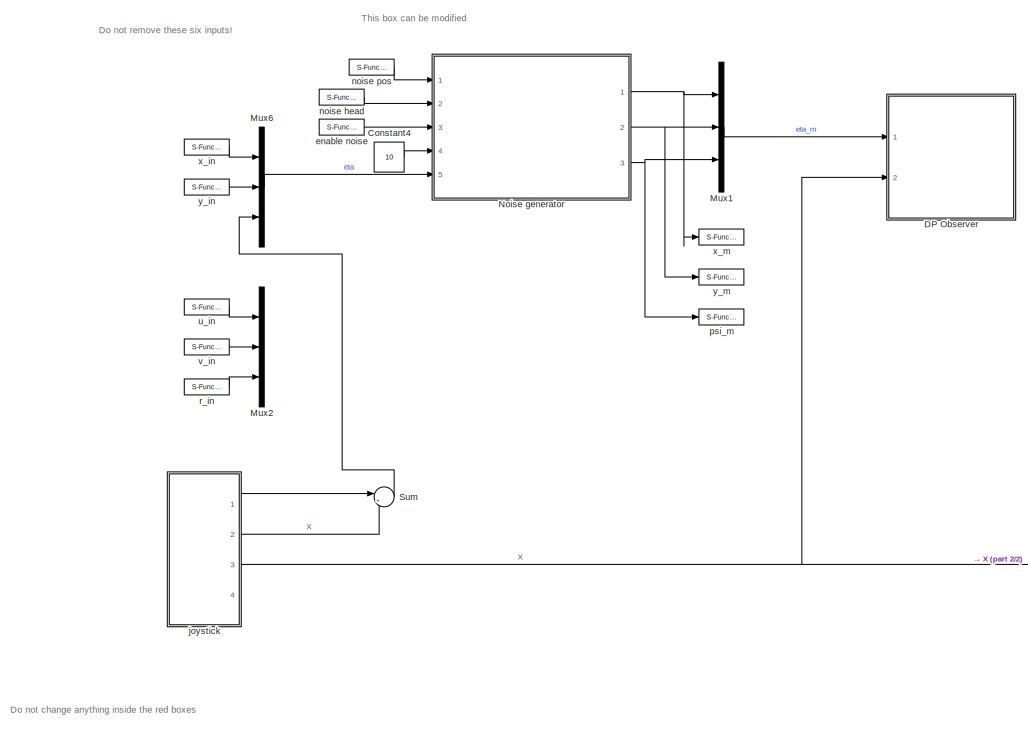
[diagram: root canvas - part 1/2, left side, full height]
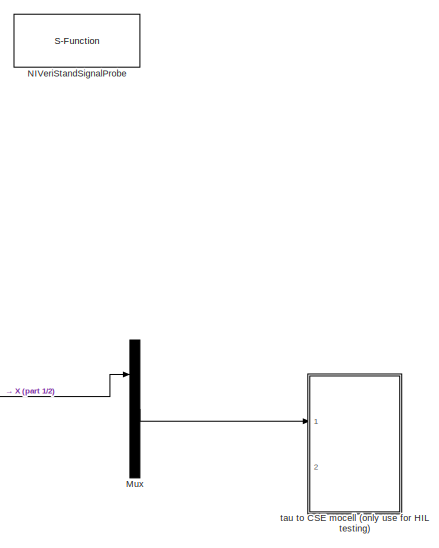
[diagram: root canvas - part 2/2, middle right region]
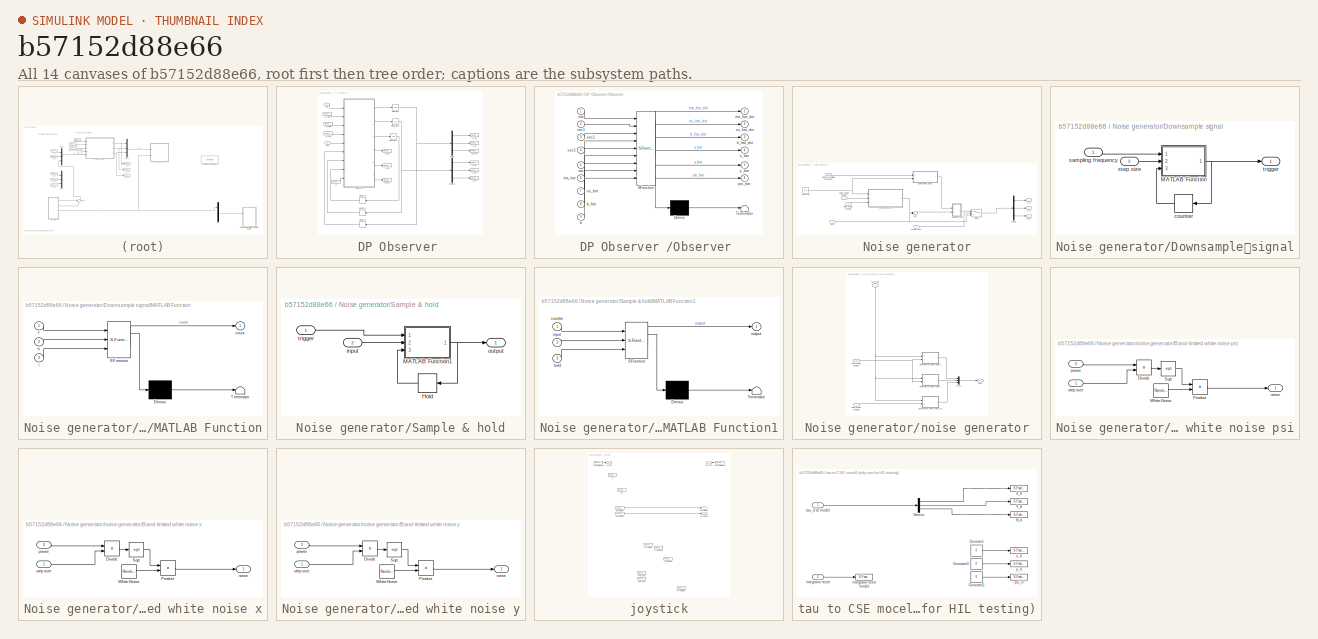
[diagram: thumbnail index - all 14 canvases of the model, root first then tree order]
MODEL slx_b57152d88e66
KIND model
CONFIG AbsTol = auto
CONFIG FixedStep = 0.01
CONFIG MaxStep = auto
CONFIG MinStep = auto
CONFIG RelTol = 1e-3
CONFIG SampleTimeConstraint = Unconstrained
CONFIG Solver = ode4
CONFIG SolverMode = Auto
CONFIG SolverName = ode4
CONFIG StartTime = 0.0
CONFIG StopTime = inf
BLOCK [Constant] Constant4
  Value = 10
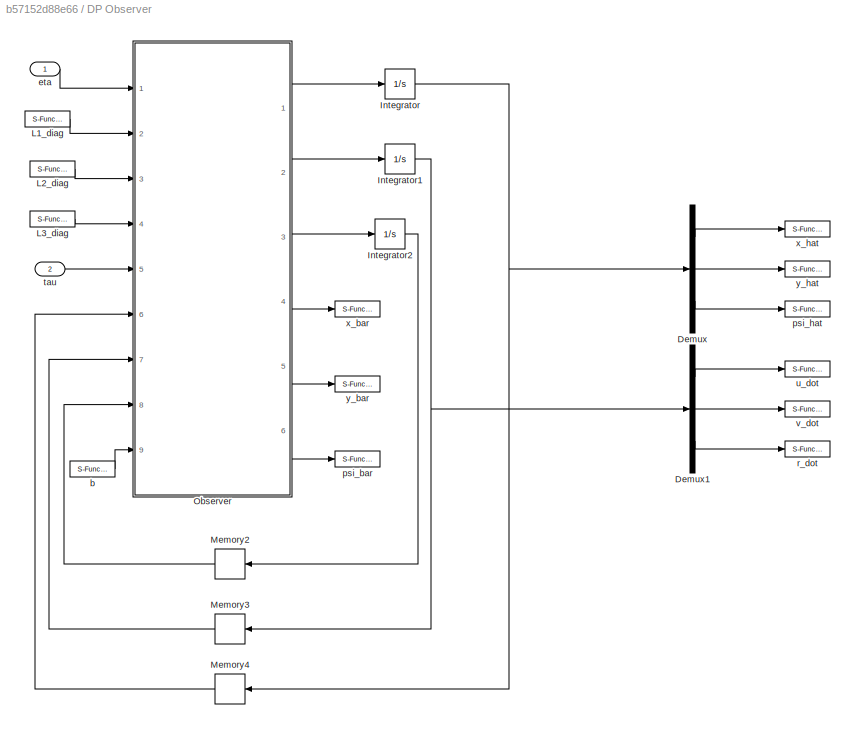
BLOCK [SubSystem] DP Observer 
  Ports = [2]
  RequestExecContextInheritance = off
BLOCK [Demux] DP Observer /Demux
  DisplayOption = bar
  Outputs = 3
  Ports = [1, 3]
BLOCK [Demux] DP Observer /Demux1
  DisplayOption = bar
  Outputs = 3
  Ports = [1, 3]
BLOCK [Integrator] DP Observer /Integrator
  Ports = [1, 1]
BLOCK [Integrator] DP Observer /Integrator1
  Ports = [1, 1]
BLOCK [Integrator] DP Observer /Integrator2
  Ports = [1, 1]
BLOCK [S-Function] DP Observer /L1_diag
  CopyFcn = NIVeriStand_MDL_functions('', 'IO_copy');
  DeleteFcn = NIVeriStand_MDL_functions('', 'IO_delete');
  FunctionName = NIVeriStandIO
  MoveFcn = set_param(gcb, 'Mask', 'on');
  Parameters = width dtype portnum stime stype btype
  Ports = [0, 1]
  Priority = 1
BLOCK [S-Function] DP Observer /L2_diag 
  CopyFcn = NIVeriStand_MDL_functions('', 'IO_copy');
  DeleteFcn = NIVeriStand_MDL_functions('', 'IO_delete');
  FunctionName = NIVeriStandIO
  MoveFcn = set_param(gcb, 'Mask', 'on');
  Parameters = width dtype portnum stime stype btype
  Ports = [0, 1]
  Priority = 2
BLOCK [S-Function] DP Observer /L3_diag
  CopyFcn = NIVeriStand_MDL_functions('', 'IO_copy');
  DeleteFcn = NIVeriStand_MDL_functions('', 'IO_delete');
  FunctionName = NIVeriStandIO
  MoveFcn = set_param(gcb, 'Mask', 'on');
  Parameters = width dtype portnum stime stype btype
  Ports = [0, 1]
  Priority = 3
BLOCK [Memory] DP Observer /Memory2
  X0 = [0;0;0]
BLOCK [Memory] DP Observer /Memory3
  X0 = [0;0;0]
BLOCK [Memory] DP Observer /Memory4
  X0 = [0;0;0]
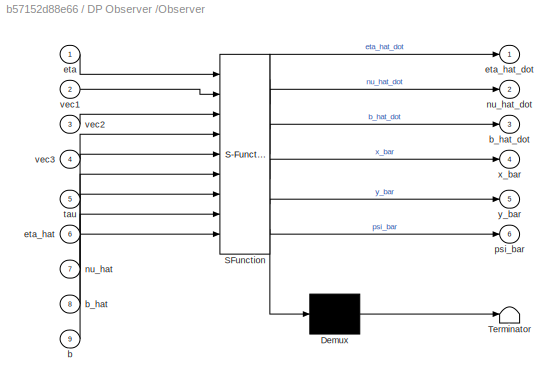
BLOCK [SubSystem] DP Observer /Observer 
  ErrorFcn = Stateflow.Translate.translate
  PermitHierarchicalResolution = ExplicitOnly
  Ports = [9, 6]
  RequestExecContextInheritance = off
  SFBlockType = MATLAB Function
  TreatAsAtomicUnit = on
BLOCK [Demux] DP Observer /Observer / Demux 
  Outputs = 1
  Ports = [1, 1]
BLOCK [S-Function] DP Observer /Observer / SFunction 
  EnableBusSupport = on
  FunctionName = sf_sfun
  PortCounts = [9 7]
  Ports = [9, 7]
  Tag = Stateflow S-Function ctrl_student_HIL_caseC 7
BLOCK [Terminator] DP Observer /Observer / Terminator 
BLOCK [Inport] DP Observer /Observer /b
  IconDisplay = Port number
  Port = 9
BLOCK [Inport] DP Observer /Observer /b_hat
  IconDisplay = Port number
  Port = 8
BLOCK [Outport] DP Observer /Observer /b_hat_dot
  IconDisplay = Port number
  Port = 3
BLOCK [Inport] DP Observer /Observer /eta
  IconDisplay = Port number
BLOCK [Inport] DP Observer /Observer /eta_hat
  IconDisplay = Port number
  Port = 6
BLOCK [Outport] DP Observer /Observer /eta_hat_dot
  IconDisplay = Port number
BLOCK [Inport] DP Observer /Observer /nu_hat
  IconDisplay = Port number
  Port = 7
BLOCK [Outport] DP Observer /Observer /nu_hat_dot
  IconDisplay = Port number
  Port = 2
BLOCK [Outport] DP Observer /Observer /psi_bar
  IconDisplay = Port number
  Port = 6
BLOCK [Inport] DP Observer /Observer /tau
  IconDisplay = Port number
  Port = 5
BLOCK [Inport] DP Observer /Observer /vec1
  IconDisplay = Port number
  Port = 2
BLOCK [Inport] DP Observer /Observer /vec2
  IconDisplay = Port number
  Port = 3
BLOCK [Inport] DP Observer /Observer /vec3
  IconDisplay = Port number
  Port = 4
BLOCK [Outport] DP Observer /Observer /x_bar
  IconDisplay = Port number
  Port = 4
BLOCK [Outport] DP Observer /Observer /y_bar
  IconDisplay = Port number
  Port = 5
BLOCK [S-Function] DP Observer /b
  CopyFcn = NIVeriStand_MDL_functions('', 'IO_copy');
  DeleteFcn = NIVeriStand_MDL_functions('', 'IO_delete');
  FunctionName = NIVeriStandIO
  MoveFcn = set_param(gcb, 'Mask', 'on');
  Parameters = width dtype portnum stime stype btype
  Ports = [0, 1]
  Priority = 4
BLOCK [Inport] DP Observer /eta 
  IconDisplay = Port number
BLOCK [S-Function] DP Observer /psi_bar
  CopyFcn = NIVeriStand_MDL_functions('', 'IO_copy');
  DeleteFcn = NIVeriStand_MDL_functions('', 'IO_delete');
  FunctionName = NIVeriStandIO
  MoveFcn = set_param(gcb, 'Mask', 'on');
  Parameters = width dtype portnum stime stype btype
  Ports = [1]
  Priority = 8
BLOCK [S-Function] DP Observer /psi_hat
  CopyFcn = NIVeriStand_MDL_functions('', 'IO_copy');
  DeleteFcn = NIVeriStand_MDL_functions('', 'IO_delete');
  FunctionName = NIVeriStandIO
  MoveFcn = set_param(gcb, 'Mask', 'on');
  Parameters = width dtype portnum stime stype btype
  Ports = [1]
  Priority = 2
BLOCK [S-Function] DP Observer /r_dot
  CopyFcn = NIVeriStand_MDL_functions('', 'IO_copy');
  DeleteFcn = NIVeriStand_MDL_functions('', 'IO_delete');
  FunctionName = NIVeriStandIO
  MoveFcn = set_param(gcb, 'Mask', 'on');
  Parameters = width dtype portnum stime stype btype
  Ports = [1]
  Priority = 4
BLOCK [Inport] DP Observer /tau 
  IconDisplay = Port number
  Port = 2
BLOCK [S-Function] DP Observer /u_dot
  CopyFcn = NIVeriStand_MDL_functions('', 'IO_copy');
  DeleteFcn = NIVeriStand_MDL_functions('', 'IO_delete');
  FunctionName = NIVeriStandIO
  MoveFcn = set_param(gcb, 'Mask', 'on');
  Parameters = width dtype portnum stime stype btype
  Ports = [1]
  Priority = 5
BLOCK [S-Function] DP Observer /v_dot
  CopyFcn = NIVeriStand_MDL_functions('', 'IO_copy');
  DeleteFcn = NIVeriStand_MDL_functions('', 'IO_delete');
  FunctionName = NIVeriStandIO
  MoveFcn = set_param(gcb, 'Mask', 'on');
  Parameters = width dtype portnum stime stype btype
  Ports = [1]
  Priority = 6
BLOCK [S-Function] DP Observer /x_bar
  CopyFcn = NIVeriStand_MDL_functions('', 'IO_copy');
  DeleteFcn = NIVeriStand_MDL_functions('', 'IO_delete');
  FunctionName = NIVeriStandIO
  MoveFcn = set_param(gcb, 'Mask', 'on');
  Parameters = width dtype portnum stime stype btype
  Ports = [1]
  Priority = 9
BLOCK [S-Function] DP Observer /x_hat
  CopyFcn = NIVeriStand_MDL_functions('', 'IO_copy');
  DeleteFcn = NIVeriStand_MDL_functions('', 'IO_delete');
  FunctionName = NIVeriStandIO
  MoveFcn = set_param(gcb, 'Mask', 'on');
  Parameters = width dtype portnum stime stype btype
  Ports = [1]
  Priority = 1
BLOCK [S-Function] DP Observer /y_bar
  CopyFcn = NIVeriStand_MDL_functions('', 'IO_copy');
  DeleteFcn = NIVeriStand_MDL_functions('', 'IO_delete');
  FunctionName = NIVeriStandIO
  MoveFcn = set_param(gcb, 'Mask', 'on');
  Parameters = width dtype portnum stime stype btype
  Ports = [1]
  Priority = 7
BLOCK [S-Function] DP Observer /y_hat
  CopyFcn = NIVeriStand_MDL_functions('', 'IO_copy');
  DeleteFcn = NIVeriStand_MDL_functions('', 'IO_delete');
  FunctionName = NIVeriStandIO
  MoveFcn = set_param(gcb, 'Mask', 'on');
  Parameters = width dtype portnum stime stype btype
  Ports = [1]
  Priority = 3
BLOCK [Mux] Mux
  DisplayOption = bar
  Inputs = 3
  Ports = [3, 1]
BLOCK [Mux] Mux1
  DisplayOption = bar
  Inputs = 3
  Ports = [3, 1]
BLOCK [Mux] Mux2
  DisplayOption = bar
  Inputs = 3
  Ports = [3, 1]
BLOCK [Mux] Mux6
  DisplayOption = bar
  Inputs = 3
  Ports = [3, 1]
BLOCK [S-Function] NIVeriStandSignalProbe
  FunctionName = NIVeriStandSignalProbe
  Parameters = 1
  Ports = []
BLOCK [SubSystem] Noise generator
  Ports = [5, 3]
  RequestExecContextInheritance = off
BLOCK [Demux] Noise generator/Demux
  DisplayOption = bar
  Outputs = 3
  Ports = [1, 3]
BLOCK [Inport] Noise generator/Desiired Sampling Frequency
  IconDisplay = Port number
  Port = 4
BLOCK [SubSystem] Noise generator/Downsample	signal
  Ports = [2, 1]
  RequestExecContextInheritance = off
BLOCK [SubSystem] Noise generator/Downsample	signal/MATLAB Function
  ErrorFcn = Stateflow.Translate.translate
  PermitHierarchicalResolution = ExplicitOnly
  Ports = [3, 1]
  RequestExecContextInheritance = off
  SFBlockType = MATLAB Function
  TreatAsAtomicUnit = on
BLOCK [Demux] Noise generator/Downsample	signal/MATLAB Function/ Demux 
  Outputs = 1
  Ports = [1, 1]
BLOCK [S-Function] Noise generator/Downsample	signal/MATLAB Function/ SFunction 
  EnableBusSupport = on
  FunctionName = sf_sfun
  PortCounts = [3 2]
  Ports = [3, 2]
  Tag = Stateflow S-Function ctrl_student_HIL_caseC 3
BLOCK [Terminator] Noise generator/Downsample	signal/MATLAB Function/ Terminator 
BLOCK [Outport] Noise generator/Downsample	signal/MATLAB Function/count
  IconDisplay = Port number
BLOCK [Inport] Noise generator/Downsample	signal/MATLAB Function/f
  IconDisplay = Port number
BLOCK [Inport] Noise generator/Downsample	signal/MATLAB Function/h
  IconDisplay = Port number
  Port = 2
BLOCK [Inport] Noise generator/Downsample	signal/MATLAB Function/i
  IconDisplay = Port number
  Port = 3
BLOCK [Memory] Noise generator/Downsample	signal/counter
BLOCK [Inport] Noise generator/Downsample	signal/sampling frequency
  IconDisplay = Port number
BLOCK [Inport] Noise generator/Downsample	signal/step size
  IconDisplay = Port number
  Port = 2
BLOCK [Outport] Noise generator/Downsample	signal/trigger
  IconDisplay = Port number
BLOCK [Inport] Noise generator/Enable noise
  IconDisplay = Port number
  Port = 3
BLOCK [Inport] Noise generator/Noise power heading
  IconDisplay = Port number
  Port = 2
BLOCK [Inport] Noise generator/Noise power position
  IconDisplay = Port number
BLOCK [SubSystem] Noise generator/Sample & hold
  Ports = [2, 1]
  RequestExecContextInheritance = off
BLOCK [Memory] Noise generator/Sample & hold/Hold
BLOCK [SubSystem] Noise generator/Sample & hold/MATLAB Function1
  ErrorFcn = Stateflow.Translate.translate
  PermitHierarchicalResolution = ExplicitOnly
  Ports = [3, 1]
  RequestExecContextInheritance = off
  SFBlockType = MATLAB Function
  TreatAsAtomicUnit = on
BLOCK [Demux] Noise generator/Sample & hold/MATLAB Function1/ Demux 
  Outputs = 1
  Ports = [1, 1]
BLOCK [S-Function] Noise generator/Sample & hold/MATLAB Function1/ SFunction 
  EnableBusSupport = on
  FunctionName = sf_sfun
  PortCounts = [3 2]
  Ports = [3, 2]
  Tag = Stateflow S-Function ctrl_student_HIL_caseC 5
BLOCK [Terminator] Noise generator/Sample & hold/MATLAB Function1/ Terminator 
BLOCK [Inport] Noise generator/Sample & hold/MATLAB Function1/counter
  IconDisplay = Port number
BLOCK [Inport] Noise generator/Sample & hold/MATLAB Function1/hold
  IconDisplay = Port number
  Port = 3
BLOCK [Inport] Noise generator/Sample & hold/MATLAB Function1/input
  IconDisplay = Port number
  Port = 2
BLOCK [Outport] Noise generator/Sample & hold/MATLAB Function1/output
  IconDisplay = Port number
BLOCK [Inport] Noise generator/Sample & hold/input
  IconDisplay = Port number
  Port = 2
BLOCK [Outport] Noise generator/Sample & hold/output
  IconDisplay = Port number
BLOCK [Inport] Noise generator/Sample & hold/trigger
  IconDisplay = Port number
BLOCK [Constant] Noise generator/Step size
  Value = 0.01
BLOCK [Sum] Noise generator/Sum
  InputSameDT = off
  OutDataTypeStr = Inherit: Inherit via internal rule
  Ports = [2, 1]
  SaturateOnIntegerOverflow = off
BLOCK [Switch] Noise generator/Switch
  Criteria = u2 ~= 0
  InputSameDT = off
  SaturateOnIntegerOverflow = off
BLOCK [Inport] Noise generator/eta
  IconDisplay = Port number
  Port = 5
BLOCK [SubSystem] Noise generator/noise generator
  Ports = [3, 1]
  RequestExecContextInheritance = off
BLOCK [SubSystem] Noise generator/noise generator/Band-limited white noise psi
  Ports = [2, 1]
  RequestExecContextInheritance = off
BLOCK [Product] Noise generator/noise generator/Band-limited white noise psi/Divide
  InputSameDT = off
  Inputs = */
  OutDataTypeStr = Inherit: Inherit via internal rule
  Ports = [2, 1]
  RndMeth = Floor
  SaturateOnIntegerOverflow = off
BLOCK [Product] Noise generator/noise generator/Band-limited white noise psi/Product
  InputSameDT = off
  OutDataTypeStr = Inherit: Inherit via internal rule
  Ports = [2, 1]
  RndMeth = Floor
  SaturateOnIntegerOverflow = off
BLOCK [Sqrt] Noise generator/noise generator/Band-limited white noise psi/Sqrt
BLOCK [RandomNumber] Noise generator/noise generator/Band-limited white noise psi/White Noise
  DisableCoverage = on
  Seed = 9025
BLOCK [Outport] Noise generator/noise generator/Band-limited white noise psi/noise
  IconDisplay = Port number
BLOCK [Inport] Noise generator/noise generator/Band-limited white noise psi/power
  IconDisplay = Port number
  Port = 2
BLOCK [Inport] Noise generator/noise generator/Band-limited white noise psi/step size
  IconDisplay = Port number
BLOCK [SubSystem] Noise generator/noise generator/Band-limited white noise x
  Ports = [2, 1]
  RequestExecContextInheritance = off
BLOCK [Product] Noise generator/noise generator/Band-limited white noise x/Divide
  InputSameDT = off
  Inputs = */
  OutDataTypeStr = Inherit: Inherit via internal rule
  Ports = [2, 1]
  RndMeth = Floor
  SaturateOnIntegerOverflow = off
BLOCK [Product] Noise generator/noise generator/Band-limited white noise x/Product
  InputSameDT = off
  OutDataTypeStr = Inherit: Inherit via internal rule
  Ports = [2, 1]
  RndMeth = Floor
  SaturateOnIntegerOverflow = off
BLOCK [Sqrt] Noise generator/noise generator/Band-limited white noise x/Sqrt
BLOCK [RandomNumber] Noise generator/noise generator/Band-limited white noise x/White Noise
  DisableCoverage = on
  Seed = 9024
BLOCK [Outport] Noise generator/noise generator/Band-limited white noise x/noise
  IconDisplay = Port number
BLOCK [Inport] Noise generator/noise generator/Band-limited white noise x/power
  IconDisplay = Port number
  Port = 2
BLOCK [Inport] Noise generator/noise generator/Band-limited white noise x/step size
  IconDisplay = Port number
BLOCK [SubSystem] Noise generator/noise generator/Band-limited white noise y
  Ports = [2, 1]
  RequestExecContextInheritance = off
BLOCK [Product] Noise generator/noise generator/Band-limited white noise y/Divide
  InputSameDT = off
  Inputs = */
  OutDataTypeStr = Inherit: Inherit via internal rule
  Ports = [2, 1]
  RndMeth = Floor
  SaturateOnIntegerOverflow = off
BLOCK [Product] Noise generator/noise generator/Band-limited white noise y/Product
  InputSameDT = off
  OutDataTypeStr = Inherit: Inherit via internal rule
  Ports = [2, 1]
  RndMeth = Floor
  SaturateOnIntegerOverflow = off
BLOCK [Sqrt] Noise generator/noise generator/Band-limited white noise y/Sqrt
BLOCK [RandomNumber] Noise generator/noise generator/Band-limited white noise y/White Noise
  DisableCoverage = on
  Seed = 123
BLOCK [Outport] Noise generator/noise generator/Band-limited white noise y/noise
  IconDisplay = Port number
BLOCK [Inport] Noise generator/noise generator/Band-limited white noise y/power
  IconDisplay = Port number
  Port = 2
BLOCK [Inport] Noise generator/noise generator/Band-limited white noise y/step size
  IconDisplay = Port number
BLOCK [Mux] Noise generator/noise generator/Mux1
  DisplayOption = bar
  Inputs = 3
  Ports = [3, 1]
BLOCK [Outport] Noise generator/noise generator/Out1
  IconDisplay = Port number
BLOCK [Inport] Noise generator/noise generator/noise power heading
  IconDisplay = Port number
  Port = 3
BLOCK [Inport] Noise generator/noise generator/noise power position
  IconDisplay = Port number
  Port = 2
BLOCK [Inport] Noise generator/noise generator/step size
  IconDisplay = Port number
BLOCK [Outport] Noise generator/psi_m
  IconDisplay = Port number
  Port = 3
BLOCK [Outport] Noise generator/x_m
  IconDisplay = Port number
BLOCK [Outport] Noise generator/y_m
  IconDisplay = Port number
  Port = 2
BLOCK [Sum] Sum
  IconShape = round
  InputSameDT = off
  Inputs = |+-
  OutDataTypeStr = Inherit: Inherit via internal rule
  Ports = [2, 1]
  SaturateOnIntegerOverflow = off
BLOCK [S-Function] enable noise
  CopyFcn = NIVeriStand_MDL_functions('', 'IO_copy');
  DeleteFcn = NIVeriStand_MDL_functions('', 'IO_delete');
  FunctionName = NIVeriStandIO
  MoveFcn = set_param(gcb, 'Mask', 'on');
  Parameters = width dtype portnum stime stype btype
  Ports = [0, 1]
  Priority = 6
BLOCK [SubSystem] joystick
  Ports = [0, 4]
  RequestExecContextInheritance = off
BLOCK [S-Function] joystick/ArrowDown
  CopyFcn = NIVeriStand_MDL_functions('', 'IO_copy');
  DeleteFcn = NIVeriStand_MDL_functions('', 'IO_delete');
  FunctionName = NIVeriStandIO
  MoveFcn = set_param(gcb, 'Mask', 'on');
  Parameters = width dtype portnum stime stype btype
  Ports = [0, 1]
  Priority = 9
BLOCK [S-Function] joystick/ArrowLeft
  CopyFcn = NIVeriStand_MDL_functions('', 'IO_copy');
  DeleteFcn = NIVeriStand_MDL_functions('', 'IO_delete');
  FunctionName = NIVeriStandIO
  MoveFcn = set_param(gcb, 'Mask', 'on');
  Parameters = width dtype portnum stime stype btype
  Ports = [0, 1]
  Priority = 11
BLOCK [S-Function] joystick/ArrowRight
  CopyFcn = NIVeriStand_MDL_functions('', 'IO_copy');
  DeleteFcn = NIVeriStand_MDL_functions('', 'IO_delete');
  FunctionName = NIVeriStandIO
  MoveFcn = set_param(gcb, 'Mask', 'on');
  Parameters = width dtype portnum stime stype btype
  Ports = [0, 1]
  Priority = 12
BLOCK [S-Function] joystick/ArrowUp
  CopyFcn = NIVeriStand_MDL_functions('', 'IO_copy');
  DeleteFcn = NIVeriStand_MDL_functions('', 'IO_delete');
  FunctionName = NIVeriStandIO
  MoveFcn = set_param(gcb, 'Mask', 'on');
  Parameters = width dtype portnum stime stype btype
  Ports = [0, 1]
  Priority = 10
BLOCK [S-Function] joystick/L1
  CopyFcn = NIVeriStand_MDL_functions('', 'IO_copy');
  DeleteFcn = NIVeriStand_MDL_functions('', 'IO_delete');
  FunctionName = NIVeriStandIO
  MoveFcn = set_param(gcb, 'Mask', 'on');
  Parameters = width dtype portnum stime stype btype
  Ports = [0, 1]
  Priority = 7
BLOCK [Outport] joystick/L2_cont
  IconDisplay = Port number
BLOCK [S-Function] joystick/L2_continuous
  CopyFcn = NIVeriStand_MDL_functions('', 'IO_copy');
  DeleteFcn = NIVeriStand_MDL_functions('', 'IO_delete');
  FunctionName = NIVeriStandIO
  MoveFcn = set_param(gcb, 'Mask', 'on');
  Parameters = width dtype portnum stime stype btype
  Ports = [0, 1]
  Priority = 1
BLOCK [Outport] joystick/PosX Right
  IconDisplay = Port number
  Port = 3
BLOCK [S-Function] joystick/PosXLeft
  CopyFcn = NIVeriStand_MDL_functions('', 'IO_copy');
  DeleteFcn = NIVeriStand_MDL_functions('', 'IO_delete');
  FunctionName = NIVeriStandIO
  MoveFcn = set_param(gcb, 'Mask', 'on');
  Parameters = width dtype portnum stime stype btype
  Ports = [0, 1]
  Priority = 5
BLOCK [S-Function] joystick/PosXRight
  CopyFcn = NIVeriStand_MDL_functions('', 'IO_copy');
  DeleteFcn = NIVeriStand_MDL_functions('', 'IO_delete');
  FunctionName = NIVeriStandIO
  MoveFcn = set_param(gcb, 'Mask', 'on');
  Parameters = width dtype portnum stime stype btype
  Ports = [0, 1]
  Priority = 2
BLOCK [Outport] joystick/PosY Right
  IconDisplay = Port number
  Port = 4
BLOCK [S-Function] joystick/PosYLeft
  CopyFcn = NIVeriStand_MDL_functions('', 'IO_copy');
  DeleteFcn = NIVeriStand_MDL_functions('', 'IO_delete');
  FunctionName = NIVeriStandIO
  MoveFcn = set_param(gcb, 'Mask', 'on');
  Parameters = width dtype portnum stime stype btype
  Ports = [0, 1]
  Priority = 6
BLOCK [S-Function] joystick/PosYRight
  CopyFcn = NIVeriStand_MDL_functions('', 'IO_copy');
  DeleteFcn = NIVeriStand_MDL_functions('', 'IO_delete');
  FunctionName = NIVeriStandIO
  MoveFcn = set_param(gcb, 'Mask', 'on');
  Parameters = width dtype portnum stime stype btype
  Ports = [0, 1]
  Priority = 3
BLOCK [S-Function] joystick/R1
  CopyFcn = NIVeriStand_MDL_functions('', 'IO_copy');
  DeleteFcn = NIVeriStand_MDL_functions('', 'IO_delete');
  FunctionName = NIVeriStandIO
  MoveFcn = set_param(gcb, 'Mask', 'on');
  Parameters = width dtype portnum stime stype btype
  Ports = [0, 1]
  Priority = 8
BLOCK [Outport] joystick/R2_cont
  IconDisplay = Port number
  Port = 2
BLOCK [S-Function] joystick/R2_continuous
  CopyFcn = NIVeriStand_MDL_functions('', 'IO_copy');
  DeleteFcn = NIVeriStand_MDL_functions('', 'IO_delete');
  FunctionName = NIVeriStandIO
  MoveFcn = set_param(gcb, 'Mask', 'on');
  Parameters = width dtype portnum stime stype btype
  Ports = [0, 1]
  Priority = 4
BLOCK [S-Function] noise head
  CopyFcn = NIVeriStand_MDL_functions('', 'IO_copy');
  DeleteFcn = NIVeriStand_MDL_functions('', 'IO_delete');
  FunctionName = NIVeriStandIO
  MoveFcn = set_param(gcb, 'Mask', 'on');
  Parameters = width dtype portnum stime stype btype
  Ports = [0, 1]
  Priority = 8
BLOCK [S-Function] noise pos
  CopyFcn = NIVeriStand_MDL_functions('', 'IO_copy');
  DeleteFcn = NIVeriStand_MDL_functions('', 'IO_delete');
  FunctionName = NIVeriStandIO
  MoveFcn = set_param(gcb, 'Mask', 'on');
  Parameters = width dtype portnum stime stype btype
  Ports = [0, 1]
  Priority = 7
BLOCK [S-Function] psi_m
  CopyFcn = NIVeriStand_MDL_functions('', 'IO_copy');
  DeleteFcn = NIVeriStand_MDL_functions('', 'IO_delete');
  FunctionName = NIVeriStandIO
  MoveFcn = set_param(gcb, 'Mask', 'on');
  Parameters = width dtype portnum stime stype btype
  Ports = [1]
  Priority = 2
BLOCK [S-Function] r_in
  CopyFcn = NIVeriStand_MDL_functions('', 'IO_copy');
  DeleteFcn = NIVeriStand_MDL_functions('', 'IO_delete');
  FunctionName = NIVeriStandIO
  MoveFcn = set_param(gcb, 'Mask', 'on');
  Parameters = width dtype portnum stime stype btype
  Ports = [0, 1]
  Priority = 3
BLOCK [SubSystem] tau to CSE mocell (only use for HIL testing)
  Ports = [2]
  RequestExecContextInheritance = off
BLOCK [Constant] tau to CSE mocell (only use for HIL testing)/Constant
  Value = 0
BLOCK [Constant] tau to CSE mocell (only use for HIL testing)/Constant1
  Value = 0
BLOCK [Constant] tau to CSE mocell (only use for HIL testing)/Constant2
  Value = 0
BLOCK [Demux] tau to CSE mocell (only use for HIL testing)/Demux
  DisplayOption = bar
  Outputs = 3
  Ports = [1, 3]
BLOCK [S-Function] tau to CSE mocell (only use for HIL testing)/N_d
  CopyFcn = NIVeriStand_MDL_functions('', 'IO_copy');
  DeleteFcn = NIVeriStand_MDL_functions('', 'IO_delete');
  FunctionName = NIVeriStandIO
  MoveFcn = set_param(gcb, 'Mask', 'on');
  Parameters = width dtype portnum stime stype btype
  Ports = [1]
  Priority = 2
BLOCK [S-Function] tau to CSE mocell (only use for HIL testing)/X_d
  CopyFcn = NIVeriStand_MDL_functions('', 'IO_copy');
  DeleteFcn = NIVeriStand_MDL_functions('', 'IO_delete');
  FunctionName = NIVeriStandIO
  MoveFcn = set_param(gcb, 'Mask', 'on');
  Parameters = width dtype portnum stime stype btype
  Ports = [1]
  Priority = 1
BLOCK [S-Function] tau to CSE mocell (only use for HIL testing)/Y_d
  CopyFcn = NIVeriStand_MDL_functions('', 'IO_copy');
  DeleteFcn = NIVeriStand_MDL_functions('', 'IO_delete');
  FunctionName = NIVeriStandIO
  MoveFcn = set_param(gcb, 'Mask', 'on');
  Parameters = width dtype portnum stime stype btype
  Ports = [1]
  Priority = 3
BLOCK [Inport] tau to CSE mocell (only use for HIL testing)/integrator reset
  IconDisplay = Port number
  Port = 2
BLOCK [S-Function] tau to CSE mocell (only use for HIL testing)/integrator reset model
  CopyFcn = NIVeriStand_MDL_functions('', 'IO_copy');
  DeleteFcn = NIVeriStand_MDL_functions('', 'IO_delete');
  FunctionName = NIVeriStandIO
  MoveFcn = set_param(gcb, 'Mask', 'on');
  Parameters = width dtype portnum stime stype btype
  Ports = [1]
  Priority = 7
BLOCK [S-Function] tau to CSE mocell (only use for HIL testing)/psi_0 
  CopyFcn = NIVeriStand_MDL_functions('', 'IO_copy');
  DeleteFcn = NIVeriStand_MDL_functions('', 'IO_delete');
  FunctionName = NIVeriStandIO
  MoveFcn = set_param(gcb, 'Mask', 'on');
  Parameters = width dtype portnum stime stype btype
  Ports = [1]
  Priority = 4
BLOCK [Inport] tau to CSE mocell (only use for HIL testing)/tau_d to model
  IconDisplay = Port number
BLOCK [S-Function] tau to CSE mocell (only use for HIL testing)/x_0
  CopyFcn = NIVeriStand_MDL_functions('', 'IO_copy');
  DeleteFcn = NIVeriStand_MDL_functions('', 'IO_delete');
  FunctionName = NIVeriStandIO
  MoveFcn = set_param(gcb, 'Mask', 'on');
  Parameters = width dtype portnum stime stype btype
  Ports = [1]
  Priority = 5
BLOCK [S-Function] tau to CSE mocell (only use for HIL testing)/y_0
  CopyFcn = NIVeriStand_MDL_functions('', 'IO_copy');
  DeleteFcn = NIVeriStand_MDL_functions('', 'IO_delete');
  FunctionName = NIVeriStandIO
  MoveFcn = set_param(gcb, 'Mask', 'on');
  Parameters = width dtype portnum stime stype btype
  Ports = [1]
  Priority = 6
BLOCK [S-Function] u_in
  CopyFcn = NIVeriStand_MDL_functions('', 'IO_copy');
  DeleteFcn = NIVeriStand_MDL_functions('', 'IO_delete');
  FunctionName = NIVeriStandIO
  MoveFcn = set_param(gcb, 'Mask', 'on');
  Parameters = width dtype portnum stime stype btype
  Ports = [0, 1]
  Priority = 4
BLOCK [S-Function] v_in
  CopyFcn = NIVeriStand_MDL_functions('', 'IO_copy');
  DeleteFcn = NIVeriStand_MDL_functions('', 'IO_delete');
  FunctionName = NIVeriStandIO
  MoveFcn = set_param(gcb, 'Mask', 'on');
  Parameters = width dtype portnum stime stype btype
  Ports = [0, 1]
  Priority = 5
BLOCK [S-Function] x_in
  CopyFcn = NIVeriStand_MDL_functions('', 'IO_copy');
  DeleteFcn = NIVeriStand_MDL_functions('', 'IO_delete');
  FunctionName = NIVeriStandIO
  MoveFcn = set_param(gcb, 'Mask', 'on');
  Parameters = width dtype portnum stime stype btype
  Ports = [0, 1]
  Priority = 2
BLOCK [S-Function] x_m
  CopyFcn = NIVeriStand_MDL_functions('', 'IO_copy');
  DeleteFcn = NIVeriStand_MDL_functions('', 'IO_delete');
  FunctionName = NIVeriStandIO
  MoveFcn = set_param(gcb, 'Mask', 'on');
  Parameters = width dtype portnum stime stype btype
  Ports = [1]
  Priority = 1
BLOCK [S-Function] y_in
  CopyFcn = NIVeriStand_MDL_functions('', 'IO_copy');
  DeleteFcn = NIVeriStand_MDL_functions('', 'IO_delete');
  FunctionName = NIVeriStandIO
  MoveFcn = set_param(gcb, 'Mask', 'on');
  Parameters = width dtype portnum stime stype btype
  Ports = [0, 1]
  Priority = 1
BLOCK [S-Function] y_m
  CopyFcn = NIVeriStand_MDL_functions('', 'IO_copy');
  DeleteFcn = NIVeriStand_MDL_functions('', 'IO_delete');
  FunctionName = NIVeriStandIO
  MoveFcn = set_param(gcb, 'Mask', 'on');
  Parameters = width dtype portnum stime stype btype
  Ports = [1]
  Priority = 3
ANNOTATION (root): This box can be modified
ANNOTATION (root): Do not change anything inside the red boxes
ANNOTATION (root): Do not remove these six inputs!
LINE Constant4:1 -> Noise generator:4
LINE DP Observer /Demux1:1 -> DP Observer /u_dot:1
LINE DP Observer /Demux1:2 -> DP Observer /v_dot:1
LINE DP Observer /Demux1:3 -> DP Observer /r_dot:1
LINE DP Observer /Demux:1 -> DP Observer /x_hat:1
LINE DP Observer /Demux:2 -> DP Observer /y_hat:1
LINE DP Observer /Demux:3 -> DP Observer /psi_hat:1
NET DP Observer /Integrator1:1 -> DP Observer /Demux1:1, DP Observer /Memory3:1
LINE DP Observer /Integrator2:1 -> DP Observer /Memory2:1
NET DP Observer /Integrator:1 -> DP Observer /Demux:1, DP Observer /Memory4:1
LINE DP Observer /L1_diag:1 -> DP Observer /Observer :2
LINE DP Observer /L2_diag :1 -> DP Observer /Observer :3
LINE DP Observer /L3_diag:1 -> DP Observer /Observer :4
LINE DP Observer /Memory2:1 -> DP Observer /Observer :8
LINE DP Observer /Memory3:1 -> DP Observer /Observer :7
LINE DP Observer /Memory4:1 -> DP Observer /Observer :6
LINE DP Observer /Observer :1 -> DP Observer /Integrator:1
LINE DP Observer /Observer :2 -> DP Observer /Integrator1:1
LINE DP Observer /Observer :3 -> DP Observer /Integrator2:1
LINE DP Observer /Observer :4 -> DP Observer /x_bar:1
LINE DP Observer /Observer :5 -> DP Observer /y_bar:1
LINE DP Observer /Observer :6 -> DP Observer /psi_bar:1
LINE DP Observer /b:1 -> DP Observer /Observer :9
LINE DP Observer /eta :1 -> DP Observer /Observer :1
LINE DP Observer /tau :1 -> DP Observer /Observer :5
LINE Mux1:1 -> DP Observer :1
LINE Mux6:1 -> Noise generator:5
LINE Mux:1 -> tau to CSE mocell (only use for HIL testing):1
LINE Noise generator/Demux:1 -> Noise generator/x_m:1
LINE Noise generator/Demux:2 -> Noise generator/y_m:1
LINE Noise generator/Demux:3 -> Noise generator/psi_m:1
LINE Noise generator/Desiired Sampling Frequency:1 -> Noise generator/Downsample	signal:1
NET Noise generator/Downsample	signal/MATLAB Function:1 -> Noise generator/Downsample	signal/counter:1, Noise generator/Downsample	signal/trigger:1
LINE Noise generator/Downsample	signal/counter:1 -> Noise generator/Downsample	signal/MATLAB Function:3
LINE Noise generator/Downsample	signal/sampling frequency:1 -> Noise generator/Downsample	signal/MATLAB Function:1
LINE Noise generator/Downsample	signal/step size:1 -> Noise generator/Downsample	signal/MATLAB Function:2
LINE Noise generator/Downsample	signal:1 -> Noise generator/Sample & hold:1
LINE Noise generator/Enable noise:1 -> Noise generator/Switch:2
LINE Noise generator/Noise power heading:1 -> Noise generator/noise generator:3
LINE Noise generator/Noise power position:1 -> Noise generator/noise generator:2
LINE Noise generator/Sample & hold/Hold:1 -> Noise generator/Sample & hold/MATLAB Function1:3
NET Noise generator/Sample & hold/MATLAB Function1:1 -> Noise generator/Sample & hold/Hold:1, Noise generator/Sample & hold/output:1
LINE Noise generator/Sample & hold/input:1 -> Noise generator/Sample & hold/MATLAB Function1:2
LINE Noise generator/Sample & hold/trigger:1 -> Noise generator/Sample & hold/MATLAB Function1:1
LINE Noise generator/Sample & hold:1 -> Noise generator/Switch:1
NET Noise generator/Step size:1 -> Noise generator/Downsample	signal:2, Noise generator/noise generator:1
LINE Noise generator/Sum:1 -> Noise generator/Sample & hold:2
LINE Noise generator/Switch:1 -> Noise generator/Demux:1
NET Noise generator/eta:1 -> Noise generator/Sum:2, Noise generator/Switch:3
LINE Noise generator/noise generator/Band-limited white noise psi/Divide:1 -> Noise generator/noise generator/Band-limited white noise psi/Sqrt:1
LINE Noise generator/noise generator/Band-limited white noise psi/Product:1 -> Noise generator/noise generator/Band-limited white noise psi/noise:1
LINE Noise generator/noise generator/Band-limited white noise psi/Sqrt:1 -> Noise generator/noise generator/Band-limited white noise psi/Product:1
LINE Noise generator/noise generator/Band-limited white noise psi/White Noise:1 -> Noise generator/noise generator/Band-limited white noise psi/Product:2
LINE Noise generator/noise generator/Band-limited white noise psi/power:1 -> Noise generator/noise generator/Band-limited white noise psi/Divide:1
LINE Noise generator/noise generator/Band-limited white noise psi/step size:1 -> Noise generator/noise generator/Band-limited white noise psi/Divide:2
LINE Noise generator/noise generator/Band-limited white noise psi:1 -> Noise generator/noise generator/Mux1:3
LINE Noise generator/noise generator/Band-limited white noise x/Divide:1 -> Noise generator/noise generator/Band-limited white noise x/Sqrt:1
LINE Noise generator/noise generator/Band-limited white noise x/Product:1 -> Noise generator/noise generator/Band-limited white noise x/noise:1
LINE Noise generator/noise generator/Band-limited white noise x/Sqrt:1 -> Noise generator/noise generator/Band-limited white noise x/Product:1
LINE Noise generator/noise generator/Band-limited white noise x/White Noise:1 -> Noise generator/noise generator/Band-limited white noise x/Product:2
LINE Noise generator/noise generator/Band-limited white noise x/power:1 -> Noise generator/noise generator/Band-limited white noise x/Divide:1
LINE Noise generator/noise generator/Band-limited white noise x/step size:1 -> Noise generator/noise generator/Band-limited white noise x/Divide:2
LINE Noise generator/noise generator/Band-limited white noise x:1 -> Noise generator/noise generator/Mux1:1
LINE Noise generator/noise generator/Band-limited white noise y/Divide:1 -> Noise generator/noise generator/Band-limited white noise y/Sqrt:1
LINE Noise generator/noise generator/Band-limited white noise y/Product:1 -> Noise generator/noise generator/Band-limited white noise y/noise:1
LINE Noise generator/noise generator/Band-limited white noise y/Sqrt:1 -> Noise generator/noise generator/Band-limited white noise y/Product:1
LINE Noise generator/noise generator/Band-limited white noise y/White Noise:1 -> Noise generator/noise generator/Band-limited white noise y/Product:2
LINE Noise generator/noise generator/Band-limited white noise y/power:1 -> Noise generator/noise generator/Band-limited white noise y/Divide:1
LINE Noise generator/noise generator/Band-limited white noise y/step size:1 -> Noise generator/noise generator/Band-limited white noise y/Divide:2
LINE Noise generator/noise generator/Band-limited white noise y:1 -> Noise generator/noise generator/Mux1:2
LINE Noise generator/noise generator/Mux1:1 -> Noise generator/noise generator/Out1:1
LINE Noise generator/noise generator/noise power heading:1 -> Noise generator/noise generator/Band-limited white noise psi:2
NET Noise generator/noise generator/noise power position:1 -> Noise generator/noise generator/Band-limited white noise x:2, Noise generator/noise generator/Band-limited white noise y:2
NET Noise generator/noise generator/step size:1 -> Noise generator/noise generator/Band-limited white noise psi:1, Noise generator/noise generator/Band-limited white noise x:1, Noise generator/noise generator/Band-limited white noise y:1
LINE Noise generator/noise generator:1 -> Noise generator/Sum:1
NET Noise generator:1 -> Mux1:1, x_m:1
NET Noise generator:2 -> Mux1:2, y_m:1
NET Noise generator:3 -> Mux1:3, psi_m:1
LINE Sum:1 -> Mux6:3
LINE enable noise:1 -> Noise generator:3
LINE joystick/L2_continuous:1 -> joystick/L2_cont:1
LINE joystick/PosXRight:1 -> joystick/PosX Right:1
LINE joystick/PosYRight:1 -> joystick/PosY Right:1
LINE joystick/R2_continuous:1 -> joystick/R2_cont:1
LINE joystick:1 -> Sum:1
LINE joystick:2 -> Sum:2
NET joystick:3 -> DP Observer :2, Mux:1
LINE noise head:1 -> Noise generator:2
LINE noise pos:1 -> Noise generator:1
LINE r_in:1 -> Mux2:3
LINE tau to CSE mocell (only use for HIL testing)/Constant1:1 -> tau to CSE mocell (only use for HIL testing)/y_0:1
LINE tau to CSE mocell (only use for HIL testing)/Constant2:1 -> tau to CSE mocell (only use for HIL testing)/psi_0 :1
LINE tau to CSE mocell (only use for HIL testing)/Constant:1 -> tau to CSE mocell (only use for HIL testing)/x_0:1
LINE tau to CSE mocell (only use for HIL testing)/Demux:1 -> tau to CSE mocell (only use for HIL testing)/X_d:1
LINE tau to CSE mocell (only use for HIL testing)/Demux:2 -> tau to CSE mocell (only use for HIL testing)/Y_d:1
LINE tau to CSE mocell (only use for HIL testing)/Demux:3 -> tau to CSE mocell (only use for HIL testing)/N_d:1
LINE tau to CSE mocell (only use for HIL testing)/integrator reset:1 -> tau to CSE mocell (only use for HIL testing)/integrator reset model:1
LINE tau to CSE mocell (only use for HIL testing)/tau_d to model:1 -> tau to CSE mocell (only use for HIL testing)/Demux:1
LINE u_in:1 -> Mux2:1
LINE v_in:1 -> Mux2:2
LINE x_in:1 -> Mux6:1
LINE y_in:1 -> Mux6:2
note: NET lines group one-source signal fan-out (src -> all destinations, sorted); 1:1 wires keep LINE
CHART Noise generator/Downsample	signal/MATLAB Function states=1 transitions=1
  STATE_LABEL 'eML_blk_kernel()'
  STATE_LABEL 'SCRIPT:\nfunction count = fcn(f,h,i)\n%#codegen\nsampling_time = 1/f;\nif (i+1)*h >= sampling_time\n    count = 0;\nelse\n    count = i+1;\nend'
CHART Noise generator/Sample & hold/MATLAB Function1 states=1 transitions=1
  STATE_LABEL 'eML_blk_kernel()'
  STATE_LABEL 'SCRIPT:\nfunction output = fcn(counter,input,hold)\n%#codegen\n\nif counter == 0\n    output = input;\nelse\n    output = hold;\nend'
CHART DP Observer
/Observer
 states=1 transitions=1
  STATE_LABEL 'eML_blk_kernel()'
  STATE_LABEL 'SCRIPT:\nfunction [eta_hat_dot, nu_hat_dot, b_hat_dot,  x_bar,  y_bar,    psi_bar]   = Observer(  eta, vec1, vec2, vec3, tau, eta_hat, nu_hat, b_hat, b)\n% if(first == 1)\n% eta_hat = zeros(3,1) ; \n% nu_hat = zeros(3,1); \n% b_hau = zeros(3,1)\n% first_out = 0; \n% end\nL1 = diag(vec1); \nL2 = diag(vec2); \nL3 = diag(vec3); \nM = [16.79 0 0; 0 24.79 0.5546; 0 0.5546 2.7600];\n\n\n\n% The total damping matrix fr...<+390ch>'
